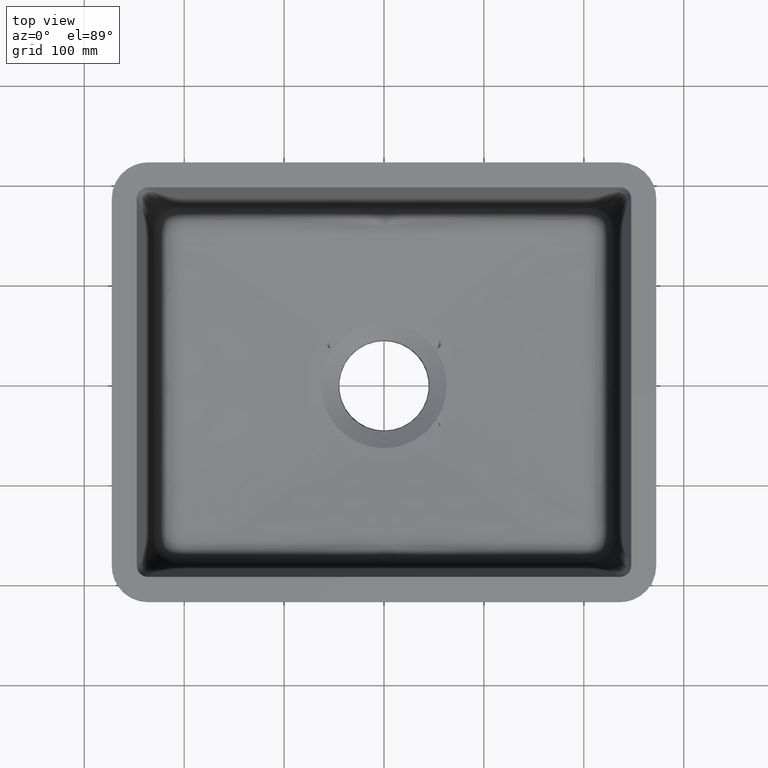
[diagram: clean part render]
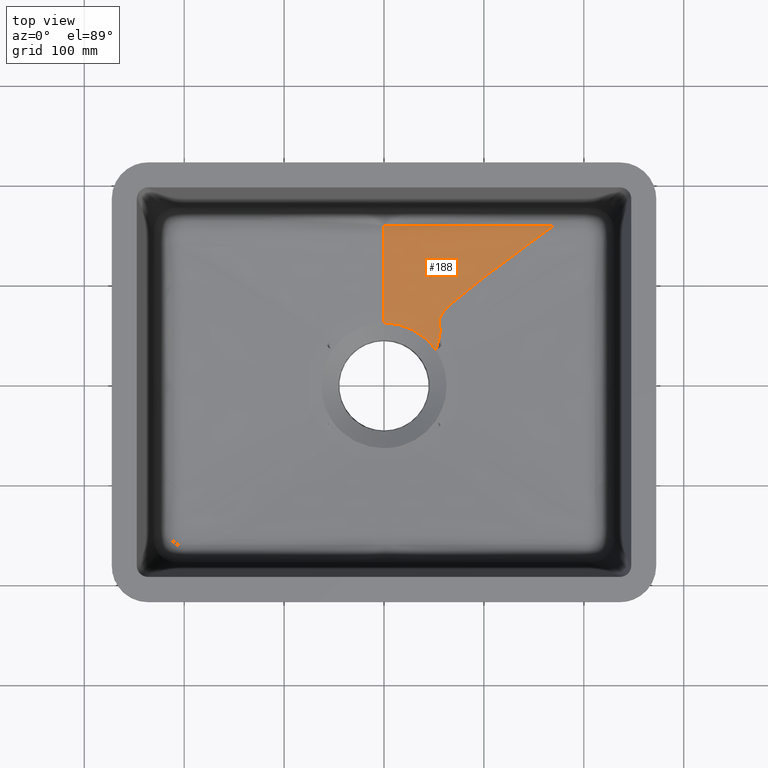
[diagram: same view with one face highlighted and labeled with its STEP entity id]
A machine part, top view. The second image highlights one B-rep face of the part: STEP entity #188.
In plain terms, the highlighted face is a freeform B-spline surface patch.
Its self-contained STEP definition (entity closure, byte-faithful):
#131=B_SPLINE_SURFACE_WITH_KNOTS('',3,3,((#11012,#11013,#11014,#11015,#11016,
#11017,#11018),(#11019,#11020,#11021,#11022,#11023,#11024,#11025),(#11026,
#11027,#11028,#11029,#11030,#11031,#11032),(#11033,#11034,#11035,#11036,
#11037,#11038,#11039),(#11040,#11041,#11042,#11043,#11044,#11045,#11046),
(#11047,#11048,#11049,#11050,#11051,#11052,#11053),(#11054,#11055,#11056,
#11057,#11058,#11059,#11060),(#11061,#11062,#11063,#11064,#11065,#11066,
#11067),(#11068,#11069,#11070,#11071,#11072,#11073,#11074),(#11075,#11076,
#11077,#11078,#11079,#11080,#11081),(#11082,#11083,#11084,#11085,#11086,
#11087,#11088)),.UNSPECIFIED.,.F.,.F.,.F.,(4,1,1,1,1,1,1,1,4),(4,3,4),(0.,
0.125,0.25,0.375,0.5,0.625,0.75,0.875,1.),(0.,0.99009900990099,1.),
 .UNSPECIFIED.);
#188=ADVANCED_FACE('',(#259),#131,.T.);
#259=FACE_OUTER_BOUND('',#329,.T.);
#329=EDGE_LOOP('',(#494,#495,#496,#497,#498,#499));
#494=ORIENTED_EDGE('',*,*,#950,.F.);
#495=ORIENTED_EDGE('',*,*,#951,.F.);
#496=ORIENTED_EDGE('',*,*,#948,.T.);
#497=ORIENTED_EDGE('',*,*,#947,.T.);
#498=ORIENTED_EDGE('',*,*,#903,.T.);
#499=ORIENTED_EDGE('',*,*,#912,.T.);
#783=VERTEX_POINT('',#1527);
#784=VERTEX_POINT('',#1538);
#791=VERTEX_POINT('',#1681);
#814=VERTEX_POINT('',#10898);
#815=VERTEX_POINT('',#10903);
#816=VERTEX_POINT('',#10998);
#903=EDGE_CURVE('',#784,#783,#1081,.T.);
#912=EDGE_CURVE('',#783,#791,#1090,.T.);
#947=EDGE_CURVE('',#814,#784,#1124,.T.);
#948=EDGE_CURVE('',#815,#814,#1125,.T.);
#950=EDGE_CURVE('',#816,#791,#1127,.T.);
#951=EDGE_CURVE('',#815,#816,#1128,.T.);
#1081=B_SPLINE_CURVE_WITH_KNOTS('',3,(#1528,#1529,#1530,#1531,#1532,#1533,
#1534,#1535,#1536,#1537),.UNSPECIFIED.,.F.,.F.,(4,2,2,2,4),(0.,0.25,0.5,
0.75,1.),.UNSPECIFIED.);
#1090=B_SPLINE_CURVE_WITH_KNOTS('',3,(#1682,#1683,#1684,#1685,#1686,#1687,
#1688,#1689,#1690,#1691,#1692,#1693,#1694,#1695,#1696,#1697,#1698,#1699,
#1700,#1701,#1702,#1703,#1704,#1705,#1706,#1707,#1708,#1709,#1710,#1711,
#1712,#1713,#1714,#1715,#1716,#1717,#1718,#1719,#1720,#1721,#1722,#1723,
#1724,#1725,#1726,#1727,#1728,#1729,#1730,#1731,#1732,#1733,#1734,#1735,
#1736,#1737,#1738,#1739,#1740,#1741,#1742,#1743,#1744,#1745,#1746,#1747,
#1748,#1749,#1750,#1751,#1752,#1753,#1754,#1755,#1756),.UNSPECIFIED.,.F.,
 .F.,(4,2,2,2,1,1,1,1,2,2,2,2,2,1,2,2,2,2,2,2,2,2,2,1,1,2,2,2,2,2,1,1,1,
2,2,2,2,2,2,1,2,2,4),(0.,0.0312500000000035,0.0468750000000053,0.0546875000000061,
0.0585937500000066,0.0605468750000067,0.0615234375000068,0.0620117187500069,
0.0622558593750069,0.0625000000000069,0.0703125000000085,0.0742187500000094,
0.0761718750000097,0.07714843750001,0.0776367187500101,0.0781250000000102,
0.0859375000000115,0.0898437500000122,0.0917968750000125,0.0927734375000127,
0.0937500000000129,0.109375000000017,0.117187500000019,0.121093750000019,
0.12304687500002,0.12402343750002,0.12500000000002,0.187500000000019,0.218750000000018,
0.234375000000018,0.242187500000018,0.246093750000018,0.248046875000018,
0.249023437500018,0.250000000000018,0.37500000000001,0.437500000000006,
0.468750000000004,0.484375000000003,0.492187500000002,0.496093750000002,
0.500000000000002,1.),.UNSPECIFIED.);
#1124=B_SPLINE_CURVE_WITH_KNOTS('',3,(#10872,#10873,#10874,#10875,#10876,
#10877,#10878,#10879,#10880,#10881,#10882,#10883,#10884,#10885,#10886,#10887,
#10888,#10889,#10890,#10891,#10892,#10893,#10894,#10895,#10896,#10897),
 .UNSPECIFIED.,.F.,.F.,(4,2,1,1,2,2,2,1,2,2,2,1,2,2,4),(0.,0.125000000000002,
0.187500000000003,0.218750000000004,0.234375000000004,0.250000000000004,
0.375000000000003,0.437500000000003,0.468750000000003,0.500000000000003,
0.625000000000002,0.687500000000002,0.718750000000002,0.750000000000003,
1.),.UNSPECIFIED.);
#1125=B_SPLINE_CURVE_WITH_KNOTS('',3,(#10899,#10900,#10901,#10902),
 .UNSPECIFIED.,.F.,.F.,(4,4),(0.,1.),.UNSPECIFIED.);
#1127=B_SPLINE_CURVE_WITH_KNOTS('',3,(#10994,#10995,#10996,#10997),
 .UNSPECIFIED.,.F.,.F.,(4,4),(0.,1.),.UNSPECIFIED.);
#1128=B_SPLINE_CURVE_WITH_KNOTS('',3,(#10999,#11000,#11001,#11002,#11003,
#11004,#11005,#11006,#11007,#11008,#11009,#11010,#11011),.UNSPECIFIED.,
 .F.,.F.,(4,1,1,1,1,1,1,1,1,1,4),(0.,0.152347371873546,0.304711423116507,
0.457075474359468,0.609439525602429,0.76180357684539,0.83798560246687,0.91416762808835,
0.952258640899091,0.990349653709831,1.),.UNSPECIFIED.);
#1527=CARTESIAN_POINT('',(52.1158131094865,34.9724057148773,-192.999999999812));
#1528=CARTESIAN_POINT('',(0.000542035464870395,62.7624666829364,-192.999999598849));
#1529=CARTESIAN_POINT('',(5.1712286689635,62.7624475712152,-192.999984851085));
#1530=CARTESIAN_POINT('',(10.2451711854775,62.1329703643817,-193.00000677875));
#1531=CARTESIAN_POINT('',(20.2038445087799,59.6429246357928,-192.99998721656));
#1532=CARTESIAN_POINT('',(25.0440005408378,57.7746749507758,-193.000005179897));
#1533=CARTESIAN_POINT('',(34.0398042187411,52.9755513680551,-192.999994668955));
#1534=CARTESIAN_POINT('',(38.3078144778815,49.9776982900093,-193.000001543422));
#1535=CARTESIAN_POINT('',(45.8905530421298,43.1197995548733,-192.999996963593));
#1536=CARTESIAN_POINT('',(49.2346221331582,39.265951075331,-192.999999999934));
#1537=CARTESIAN_POINT('',(52.1158131085053,34.9724057116146,-192.999999999934));
#1538=CARTESIAN_POINT('',(0.000542035525890485,62.7624703417083,-193.000016263764));
#1681=CARTESIAN_POINT('',(141.270108558989,138.983760886286,-184.541839191381));
#1682=CARTESIAN_POINT('',(52.1158131103127,34.9724057089214,-192.999999999934));
#1683=CARTESIAN_POINT('',(52.9250117526904,37.2212419357286,-192.911002725731));
#1684=CARTESIAN_POINT('',(53.771020099706,39.7905529661623,-192.804778632452));
#1685=CARTESIAN_POINT('',(54.836696705782,44.029196554895,-192.619602263918));
#1686=CARTESIAN_POINT('',(55.1574326955358,45.5059285058919,-192.553570102971));
#1687=CARTESIAN_POINT('',(55.5495677103658,47.8025955560335,-192.448061804397));
#1688=CARTESIAN_POINT('',(55.6654197262316,48.5817316608697,-192.411815695347));
#1689=CARTESIAN_POINT('',(55.8119861400952,49.768908298547,-192.355831517483));
#1690=CARTESIAN_POINT('',(55.8784637819596,50.3671135262841,-192.327435674979));
#1691=CARTESIAN_POINT('',(55.94300731637,51.0726717152174,-192.293600623306));
#1692=CARTESIAN_POINT('',(55.9718857012726,51.4273095260159,-192.276506455282));
#1693=CARTESIAN_POINT('',(55.9854590031885,51.6050863005103,-192.267915210723));
#1694=CARTESIAN_POINT('',(55.9910886992369,51.6813737294516,-192.264223785795));
#1695=CARTESIAN_POINT('',(55.9947999682757,51.7322535745378,-192.26176073296));
#1696=CARTESIAN_POINT('',(55.9944076998259,51.7264406036517,-192.262042907672));
#1697=CARTESIAN_POINT('',(56.1277488214084,53.5983693623111,-192.171346305902));
#1698=CARTESIAN_POINT('',(56.1192083503146,55.0765102096049,-192.09731184916));
#1699=CARTESIAN_POINT('',(56.0538731707137,56.846356475364,-192.007130808782));
#1700=CARTESIAN_POINT('',(56.0226589108157,57.3615018509019,-191.980548902778));
#1701=CARTESIAN_POINT('',(55.9750821443623,58.0271378148522,-191.945893704956));
#1702=CARTESIAN_POINT('',(55.9590577810427,58.2311545836744,-191.935211582546));
#1703=CARTESIAN_POINT('',(55.9360983514709,58.5108951442385,-191.920492814226));
#1704=CARTESIAN_POINT('',(55.9248843371264,58.6441929262206,-191.913459533891));
#1705=CARTESIAN_POINT('',(55.9142850474966,58.767714891152,-191.906915409291));
#1706=CARTESIAN_POINT('',(55.9073772568725,58.8478988209945,-191.902661360833));
#1707=CARTESIAN_POINT('',(55.9084731333506,58.8352842245302,-191.903335575698));
#1708=CARTESIAN_POINT('',(55.7766342802819,60.3577466010952,-191.822326981689));
#1709=CARTESIAN_POINT('',(55.652753418156,61.6144193688431,-191.751541034213));
#1710=CARTESIAN_POINT('',(55.5460494654823,63.2674960632255,-191.653548265681));
#1711=CARTESIAN_POINT('',(55.5234413053868,63.7797643656598,-191.622248368284));
#1712=CARTESIAN_POINT('',(55.516886941898,64.4931806987486,-191.577345060358));
#1713=CARTESIAN_POINT('',(55.5192489251697,64.7218156026236,-191.562718380745));
#1714=CARTESIAN_POINT('',(55.5304884926638,65.051350719463,-191.541289995868));
#1715=CARTESIAN_POINT('',(55.53551700717,65.1589591718271,-191.534232473333));
#1716=CARTESIAN_POINT('',(55.5482749040484,65.3697547942608,-191.52028797311));
#1717=CARTESIAN_POINT('',(55.5604216501521,65.5217278393772,-191.510115609738));
#1718=CARTESIAN_POINT('',(55.640795406675,66.4093844760525,-191.450338176865));
#1719=CARTESIAN_POINT('',(55.8214751240332,67.2525283303258,-191.389479061716));
#1720=CARTESIAN_POINT('',(56.2609933460351,68.5342847148926,-191.291293386207));
#1721=CARTESIAN_POINT('',(56.4356184020005,68.964373530225,-191.25741532724));
#1722=CARTESIAN_POINT('',(56.7414312695818,69.6144145691393,-191.204873988093));
#1723=CARTESIAN_POINT('',(56.9053099884844,69.9406616796173,-191.178172255845));
#1724=CARTESIAN_POINT('',(57.1161113934196,70.3235687919463,-191.14626587521));
#1725=CARTESIAN_POINT('',(57.2107030023915,70.4881762289849,-191.132430063578));
#1726=CARTESIAN_POINT('',(57.2747132957688,70.5980282272564,-191.123170267267));
#1727=CARTESIAN_POINT('',(57.327357922464,70.6866878597138,-191.115667605756));
#1728=CARTESIAN_POINT('',(58.1588450536638,72.0753306089943,-190.997951459552));
#1729=CARTESIAN_POINT('',(59.4320438217253,73.7176611748401,-190.850167324272));
#1730=CARTESIAN_POINT('',(62.0575276441624,76.6034308730534,-190.580672611284));
#1731=CARTESIAN_POINT('',(63.052490257089,77.6358042571228,-190.48287128861));
#1732=CARTESIAN_POINT('',(64.7335775784878,79.2919046932495,-190.324214677083));
#1733=CARTESIAN_POINT('',(65.3254133207386,79.8618661793362,-190.269336701988));
#1734=CARTESIAN_POINT('',(66.2617901428717,80.7439763902431,-190.184031082466));
#1735=CARTESIAN_POINT('',(66.742137443082,81.1918239480973,-190.140631108486));
#1736=CARTESIAN_POINT('',(67.3241625048571,81.7262648493738,-190.088690268124));
#1737=CARTESIAN_POINT('',(67.620625175933,81.9964818586885,-190.062392963596));
#1738=CARTESIAN_POINT('',(67.7488533916003,82.1129321922087,-190.051052643582));
#1739=CARTESIAN_POINT('',(67.8346000384912,82.1907087502253,-190.043476864318));
#1740=CARTESIAN_POINT('',(67.9047536411536,82.2542354582569,-190.037287237683));
#1741=CARTESIAN_POINT('',(69.9668283568962,84.1201437680336,-189.855461542715));
#1742=CARTESIAN_POINT('',(72.8969825365039,86.6523751057536,-189.60644278851));
#1743=CARTESIAN_POINT('',(78.7372625839556,91.4942078171712,-189.130010816082));
#1744=CARTESIAN_POINT('',(80.9257915557603,93.2822385234044,-188.954049518419));
#1745=CARTESIAN_POINT('',(84.594518412614,96.2298453790544,-188.664381611644));
#1746=CARTESIAN_POINT('',(85.8818083597445,97.2566530587504,-188.563537982672));
#1747=CARTESIAN_POINT('',(87.9127564566513,98.8639379040176,-188.405841049144));
#1748=CARTESIAN_POINT('',(88.606411726068,99.4108792017407,-188.352203489623));
#1749=CARTESIAN_POINT('',(89.6723671689548,100.248151122404,-188.270139277824));
#1750=CARTESIAN_POINT('',(90.2117133745992,100.671002153399,-188.228705203796));
#1751=CARTESIAN_POINT('',(90.7607024124993,101.100193454316,-188.186668177573));
#1752=CARTESIAN_POINT('',(91.12884818705,101.387731949065,-188.158509504048));
#1753=CARTESIAN_POINT('',(91.3385556420096,101.551351519743,-188.142488881067));
#1754=CARTESIAN_POINT('',(112.194381107194,117.810043616532,-186.550753416538));
#1755=CARTESIAN_POINT('',(129.506709947004,130.384710931999,-185.354663632124));
#1756=CARTESIAN_POINT('',(141.269525673102,138.983399464758,-184.541880493216));
#10872=CARTESIAN_POINT('',(-1.59120280956869E-5,139.74477069179,-184.665599577818));
#10873=CARTESIAN_POINT('',(-0.000116363528631555,134.614102302002,-185.221062831313));
#10874=CARTESIAN_POINT('',(-0.000206852680455079,129.797543889569,-185.742519710575));
#10875=CARTESIAN_POINT('',(-0.000284341222983754,123.043871207261,-186.473695468119));
#10876=CARTESIAN_POINT('',(-0.000310197606391795,119.784826093884,-186.826530956554));
#10877=CARTESIAN_POINT('',(-0.000326012717501533,116.188741371444,-187.215855676638));
#10878=CARTESIAN_POINT('',(-0.000331723064575101,114.691733887818,-187.377926981725));
#10879=CARTESIAN_POINT('',(-0.000335546297511149,113.703544826897,-187.484911819256));
#10880=CARTESIAN_POINT('',(-0.00033729520825293,113.253726446393,-187.533610748962));
#10881=CARTESIAN_POINT('',(-0.000357402889335863,108.5409053462,-188.043837480256));
#10882=CARTESIAN_POINT('',(-0.000383765287963756,104.626712649512,-188.467602163752));
#10883=CARTESIAN_POINT('',(-0.000370557900121865,99.1678958460221,-189.058593905848));
#10884=CARTESIAN_POINT('',(-0.000353076545874459,96.5416054955793,-189.342925956108));
#10885=CARTESIAN_POINT('',(-0.000327887407577919,94.0699921078588,-189.610512275188));
#10886=CARTESIAN_POINT('',(-0.000311782133383903,92.456622489663,-189.785181880979));
#10887=CARTESIAN_POINT('',(-0.000304252202520549,91.698119912737,-189.867300308748));
#10888=CARTESIAN_POINT('',(-0.000272746330494605,87.6815794626975,-190.302146646892));
#10889=CARTESIAN_POINT('',(-0.000270581485395104,84.6869749222433,-190.626354570833));
#10890=CARTESIAN_POINT('',(-0.000221655164985412,80.5230092678919,-191.077162736884));
#10891=CARTESIAN_POINT('',(-0.000188493621642053,78.5230117182067,-191.293690889944));
#10892=CARTESIAN_POINT('',(-0.000151845515592624,76.645991875326,-191.496905148056));
#10893=CARTESIAN_POINT('',(-0.000129401847615647,75.4219736626295,-191.629422676809));
#10894=CARTESIAN_POINT('',(-0.000118634205649064,74.7884824322207,-191.698007212978));
#10895=CARTESIAN_POINT('',(-5.32813423034799E-5,69.8426721697092,-192.233462461393));
#10896=CARTESIAN_POINT('',(-1.31624861024511E-7,66.0171815301977,-192.647628181833));
#10897=CARTESIAN_POINT('',(9.75731765635848E-9,62.7624685160272,-192.999999401898));
#10898=CARTESIAN_POINT('',(-1.59126345469343E-5,139.744771007015,-184.665599546575));
#10899=CARTESIAN_POINT('',(-0.00282321777652169,159.471428859471,-182.529926097158));
#10900=CARTESIAN_POINT('',(-0.00344778689632638,152.895871132107,-183.241817234649));
#10901=CARTESIAN_POINT('',(-0.00251201864413591,146.3203186549,-183.953708372139));
#10902=CARTESIAN_POINT('',(-1.59132420370387E-5,139.744771321623,-184.66559950963));
#10903=CARTESIAN_POINT('',(-0.00141160890005205,159.47142947364,-182.529926324899));
#10994=CARTESIAN_POINT('',(169.264049283951,159.471358058594,-182.620924951455));
#10995=CARTESIAN_POINT('',(159.292346533108,152.173500661368,-183.3002329762));
#10996=CARTESIAN_POINT('',(149.963846995311,145.345195010993,-183.940554301939));
#10997=CARTESIAN_POINT('',(141.270030704862,138.983588761453,-184.541853998172));
#10998=CARTESIAN_POINT('',(169.264042227908,159.471394949406,-182.620026476165));
#10999=CARTESIAN_POINT('',(-1.00677520629676E-10,159.471429602932,-182.529926016802));
#11000=CARTESIAN_POINT('',(8.59564431925465,159.471123985018,-182.529959916598));
#11001=CARTESIAN_POINT('',(25.7878730938314,159.47061568195,-182.537438847238));
#11002=CARTESIAN_POINT('',(51.5766862839652,159.469223282321,-182.54669510185));
#11003=CARTESIAN_POINT('',(77.3664392026158,159.469611912238,-182.559882001273));
#11004=CARTESIAN_POINT('',(103.156190868447,159.470683878977,-182.575158519083));
#11005=CARTESIAN_POINT('',(124.647649996181,159.471125747776,-182.588957650616));
#11006=CARTESIAN_POINT('',(141.840816718402,159.47125301515,-182.60081445499));
#11007=CARTESIAN_POINT('',(152.586545965571,159.471271572771,-182.607934961389));
#11008=CARTESIAN_POINT('',(161.18312744621,159.471310998797,-182.616939352542));
#11009=CARTESIAN_POINT('',(166.025904548023,159.471355674971,-182.62031413891));
#11010=CARTESIAN_POINT('',(168.719537421677,159.471379177567,-182.619437136863));
#11011=CARTESIAN_POINT('',(169.26402307069,159.471383786957,-182.619123147195));
#11012=CARTESIAN_POINT('',(310.788034142871,208.554842973774,-178.598066115165));
#11013=CARTESIAN_POINT('',(224.563960465352,150.694030552157,-183.398710743422));
#11014=CARTESIAN_POINT('',(138.339886787832,92.833218130539,-188.199355371678));
#11015=CARTESIAN_POINT('',(52.1158131103127,34.9724057089214,-192.999999999934));
#11016=CARTESIAN_POINT('',(51.2535723735375,34.3937975847052,-193.048006446217));
#11017=CARTESIAN_POINT('',(50.3913316367623,33.8151894604891,-193.096012892499));
#11018=CARTESIAN_POINT('',(49.5290908999871,33.2365813362729,-193.144019338782));
#11019=CARTESIAN_POINT('',(284.05219863173,206.63644998006,-178.598066115165));
#11020=CARTESIAN_POINT('',(205.78401103227,150.83981934814,-183.398710743422));
#11021=CARTESIAN_POINT('',(127.51582343281,95.043188716219,-188.199355371678));
#11022=CARTESIAN_POINT('',(49.2476358333498,39.2465580842988,-192.999999999934));
#11023=CARTESIAN_POINT('',(48.4649539573552,38.6885917779796,-193.048006446217));
#11024=CARTESIAN_POINT('',(47.6822720813606,38.1306254716604,-193.096012892499));
#11025=CARTESIAN_POINT('',(46.899590205366,37.5726591653412,-193.144019338782));
#11026=CARTESIAN_POINT('',(231.045737323211,203.108055100873,-178.598066115166));
#11027=CARTESIAN_POINT('',(168.181979117863,151.100499299144,-183.398710743421));
#11028=CARTESIAN_POINT('',(105.318220912516,99.0929434974134,-188.199355371678));
#11029=CARTESIAN_POINT('',(42.4544627071686,47.0853876956836,-192.999999999934));
#11030=CARTESIAN_POINT('',(41.8258251251151,46.5653121376663,-193.048006446217));
#11031=CARTESIAN_POINT('',(41.1971875430616,46.045236579649,-193.096012892499));
#11032=CARTESIAN_POINT('',(40.5685499610082,45.5251610216317,-193.144019338782));
#11033=CARTESIAN_POINT('',(152.661662393449,199.05201702453,-178.598066115166));
#11034=CARTESIAN_POINT('',(111.67699003429,151.370622601692,-183.398710743422));
#11035=CARTESIAN_POINT('',(70.6923176751304,103.689228178853,-188.199355371678));
#11036=CARTESIAN_POINT('',(29.7076453159712,56.0078337560138,-192.999999999934));
#11037=CARTESIAN_POINT('',(29.2977985923796,55.5310198117854,-193.048006446217));
#11038=CARTESIAN_POINT('',(28.887951868788,55.054205867557,-193.096012892499));
#11039=CARTESIAN_POINT('',(28.4781051451964,54.5773919233286,-193.144019338782));
#11040=CARTESIAN_POINT('',(75.0652676544119,196.469216247317,-178.598066115166));
#11041=CARTESIAN_POINT('',(55.1006700404246,151.49841143269,-183.398710743422));
#11042=CARTESIAN_POINT('',(35.1360724264373,106.527606618063,-188.199355371678));
#11043=CARTESIAN_POINT('',(15.1714748124497,61.5568018034356,-192.999999999934));
#11044=CARTESIAN_POINT('',(14.9718288363098,61.1070937552893,-193.048006446217));
#11045=CARTESIAN_POINT('',(14.7721828601699,60.6573857071431,-193.096012892499));
#11046=CARTESIAN_POINT('',(14.5725368840301,60.2076776589968,-193.144019338782));
#11047=CARTESIAN_POINT('',(-2.12887746075142,195.506673613296,-178.598066115166));
#11048=CARTESIAN_POINT('',(-1.51206875773077,151.47054921315,-183.398710743422));
#11049=CARTESIAN_POINT('',(-0.895260054710146,107.434424813005,-188.199355371678));
#11050=CARTESIAN_POINT('',(-0.278451351689496,63.3983004128597,-192.999999999934));
#11051=CARTESIAN_POINT('',(-0.272283264659289,62.9579391688582,-193.048006446217));
#11052=CARTESIAN_POINT('',(-0.266115177629083,62.5175779248568,-193.096012892499));
#11053=CARTESIAN_POINT('',(-0.259947090598876,62.0772166808553,-193.144019338782));
#11054=CARTESIAN_POINT('',(-79.3303833556797,196.213325096568,-178.598066115166));
#11055=CARTESIAN_POINT('',(-58.1241241347981,151.28260352556,-183.398710743422));
#11056=CARTESIAN_POINT('',(-36.9178649139164,106.351881954552,-188.199355371678));
#11057=CARTESIAN_POINT('',(-15.7116056930348,61.4211603835445,-192.999999999934));
#11058=CARTESIAN_POINT('',(-15.499543100826,60.9718531678344,-193.048006446217));
#11059=CARTESIAN_POINT('',(-15.2874805086172,60.5225459521243,-193.096012892499));
#11060=CARTESIAN_POINT('',(-15.0754179164084,60.0732387364143,-193.144019338782));
#11061=CARTESIAN_POINT('',(-156.948414777572,198.536638624766,-178.598066115166));
#11062=CARTESIAN_POINT('',(-114.698434231295,150.93933254938,-183.398710743422));
#11063=CARTESIAN_POINT('',(-72.4484536850185,103.342026473993,-188.199355371678));
#11064=CARTESIAN_POINT('',(-30.1984731387415,55.7447203986061,-192.999999999934));
#11065=CARTESIAN_POINT('',(-29.7759733332787,55.2687473378522,-193.048006446217));
#11066=CARTESIAN_POINT('',(-29.353473527816,54.7927742770984,-193.096012892499));
#11067=CARTESIAN_POINT('',(-28.9309737223532,54.3168012163445,-193.144019338782));
#11068=CARTESIAN_POINT('',(-235.367095988482,202.326213434483,-178.598066115166));
#11069=CARTESIAN_POINT('',(-171.200205261436,150.454359044865,-183.398710743422));
#11070=CARTESIAN_POINT('',(-107.03331453439,98.5825046552471,-188.199355371678));
#11071=CARTESIAN_POINT('',(-42.8664238073449,46.7106502656291,-192.999999999934));
#11072=CARTESIAN_POINT('',(-42.2247549000745,46.1919317217329,-193.048006446217));
#11073=CARTESIAN_POINT('',(-41.583085992804,45.6732131778367,-193.096012892499));
#11074=CARTESIAN_POINT('',(-40.9414170855335,45.1544946339406,-193.144019338782));
#11075=CARTESIAN_POINT('',(-288.403879839744,205.670342609179,-178.598066115166));
#11076=CARTESIAN_POINT('',(-208.799412697156,150.051045641792,-183.398710743422));
#11077=CARTESIAN_POINT('',(-129.194945554568,94.4317486744039,-188.199355371678));
#11078=CARTESIAN_POINT('',(-49.5904784119793,38.8124517070163,-192.999999999934));
#11079=CARTESIAN_POINT('',(-48.7944337405534,38.2562587373424,-193.048006446217));
#11080=CARTESIAN_POINT('',(-47.9983890691275,37.7000657676686,-193.096012892499));
#11081=CARTESIAN_POINT('',(-47.2023443977016,37.1438727979947,-193.144019338782));
#11082=CARTESIAN_POINT('',(-315.156231945361,207.49455357896,-178.598066115166));
#11083=CARTESIAN_POINT('',(-227.577821561077,149.834125753291,-183.398710743422));
#11084=CARTESIAN_POINT('',(-139.999411176794,92.1736979276195,-188.199355371678));
#11085=CARTESIAN_POINT('',(-52.4210007925099,34.5132701019493,-192.999999999934));
#11086=CARTESIAN_POINT('',(-51.5452166886671,33.9366658236926,-193.048006446217));
#11087=CARTESIAN_POINT('',(-50.6694325848242,33.3600615454359,-193.096012892499));
#11088=CARTESIAN_POINT('',(-49.7936484809814,32.7834572671792,-193.144019338782));